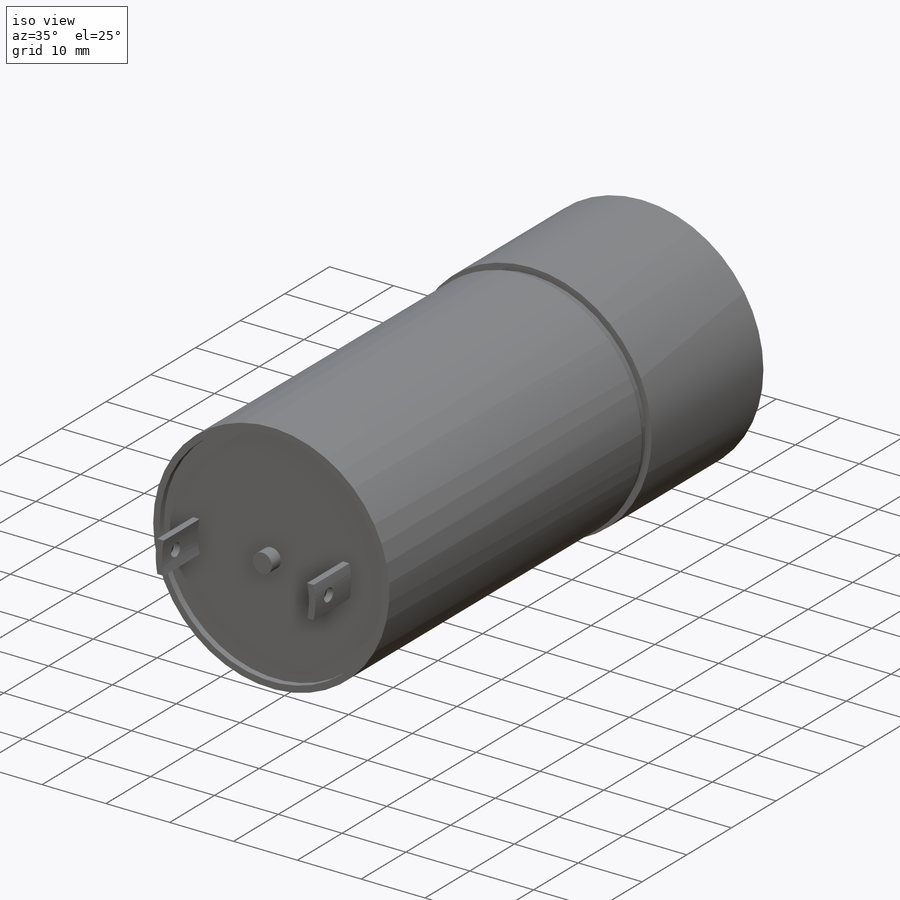
[diagram: iso view]
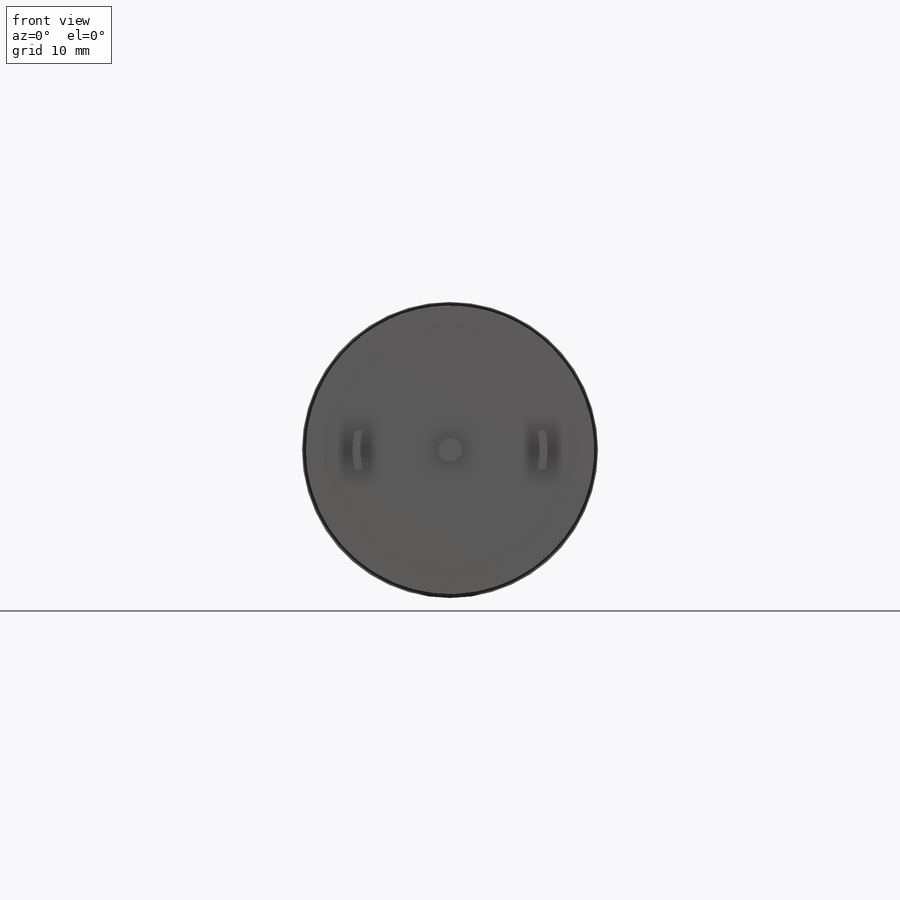
[diagram: front view]
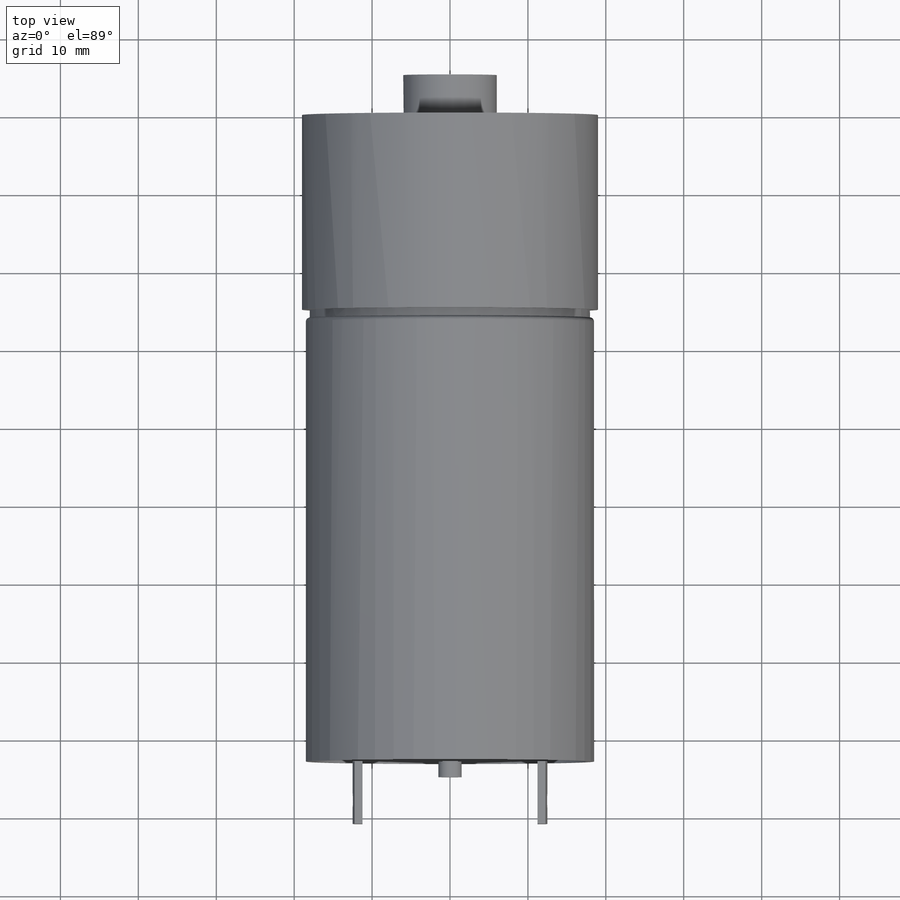
[diagram: top view]
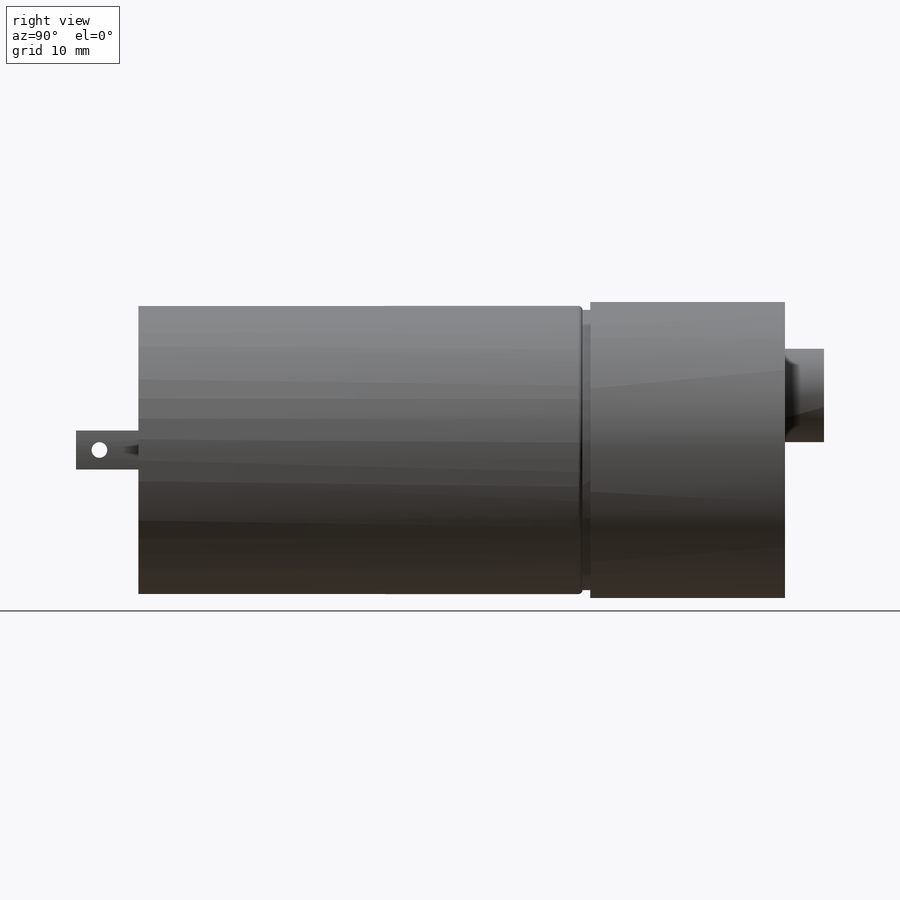
[diagram: right view]
SOLIDWORKS PART (.sldprt)
format: sldprt  version: not decoded by parser v0  size: 415,232 bytes
history: native  units: mm
features: sketch x10, extrude x5, cut_extrude x5, plane x4, material x1, fillet x1 (+9 scaffold rows collapsed)
feature tree (35):
  scaffold x9  (default folders/planes/origin — collapsed)
  material  "材质 <未指定>"
  plane  "前视基准面"
  plane  "上视基准面"
  plane  "右视基准面"
  sketch  "草图1"  dims[D1=37.0mm]
  extrude  "凸台-拉伸1"  Depth=83mm
  sketch  "草图2"  dims[D1=3.0mm]
  extrude  "凸台-拉伸2"  Depth=2mm
  sketch  "草图4"  dims[D1=25.0mm D2=23.0mm D3=5.0mm]
  extrude  "凸台-拉伸3"  Depth=8mm
  sketch  "草图6"  dims[D1=2.0mm D2=3.0mm]
  cut_extrude  "切除-拉伸2"  [1 undecoded]
  sketch  "草图7"  dims[c1.D1=3.0mm c1.D2=31.0mm c2.D1=~10.191802mm c2.D2=15.5mm c2.D3=6.0]
  cut_extrude  "切除-拉伸3"  Depth=10mm
  sketch  "草图8"  dims[c1.D1=12.0mm c1.D2=12.0mm c2.D1=7.0mm]
  extrude  "凸台-拉伸4"  Depth=5mm
  sketch  "草图10"  dims[c1.D1=~1.692341mm c1.D2=6.0mm c2.D1=2.5mm]
  cut_extrude  "切除-拉伸4"  Depth=20mm
  plane  "基准面1"  Offset=25mm
  sketch  "草图11"  dims[D1=37.0mm]
  cut_extrude  "切除-拉伸5"  Depth=1mm
  sketch  "草图12"  dims[D1=37.0mm]
  extrude  "凸台-拉伸5"  [1 undecoded]
  fillet  "圆角1"  Radius=0.5mm
  sketch  "草图13"  dims[D1=35.0mm]
  cut_extrude  "切除-拉伸6"  Depth=1mm
decode coverage: 19 of 21 modeling features carry decoded parameters
note: ~ marks probable driven/reference dimensions
note: 2 parameter values undecoded
note: suppression state not decoded; provenance and decode notes live in map.json
